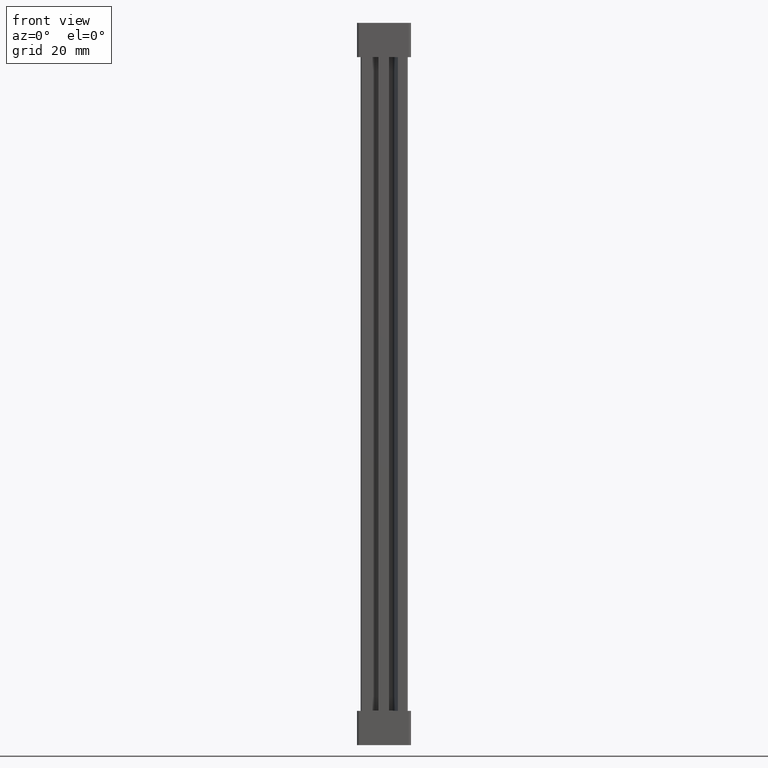
[diagram: clean part render]
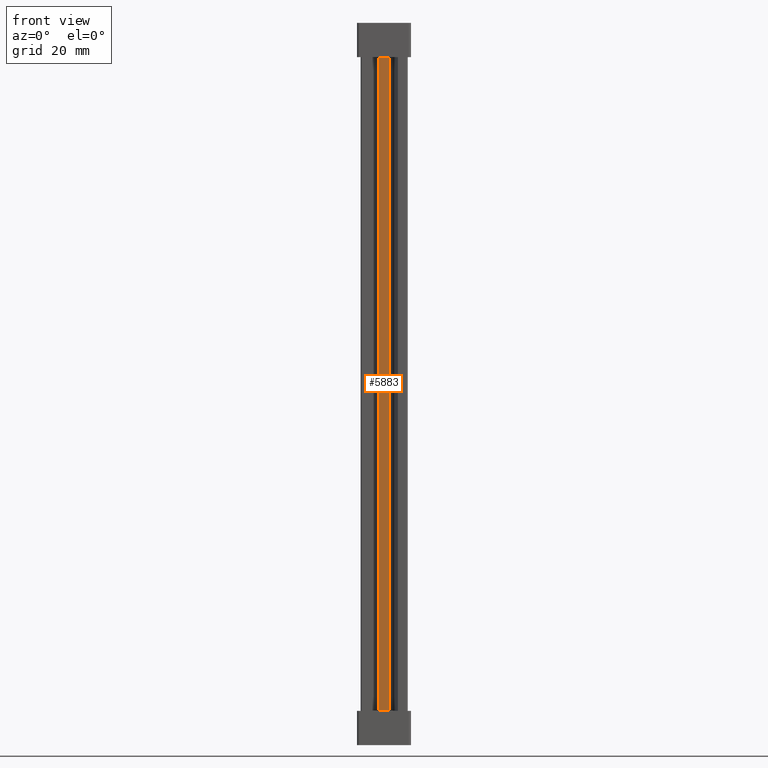
[diagram: same view with one face highlighted and labeled with its STEP entity id]
A machine part, front view. The second image highlights one B-rep face of the part: STEP entity #5883.
In plain terms, the highlighted planar face has unit normal (0, 1, 0).
Its self-contained STEP definition (entity closure, byte-faithful):
#1312 = EDGE_CURVE ( 'NONE', #21221, #21295, #5418, .T. ) ;
#1316 = EDGE_CURVE ( 'NONE', #21295, #21284, #5389, .T. ) ;
#1326 = EDGE_CURVE ( 'NONE', #21228, #21221, #5457, .T. ) ;
#1337 = EDGE_CURVE ( 'NONE', #21284, #21228, #5462, .T. ) ;
#2369 = CARTESIAN_POINT ( 'NONE',  ( 7.950000000000123600, -2.775557561562891400E-013, 208.6000000000546200 ) ) ;
#2410 = CARTESIAN_POINT ( 'NONE',  ( 4.849999999999909900, -2.775557561562891400E-013, 208.6000000000561800 ) ) ;
#2468 = CARTESIAN_POINT ( 'NONE',  ( 4.849999999999909900, -2.775557561562891400E-013, 10.39999999994381200 ) ) ;
#2498 = CARTESIAN_POINT ( 'NONE',  ( 7.950000000000123600, -2.775557561562891400E-013, 10.39999999994536000 ) ) ;
#4593 = AXIS2_PLACEMENT_3D ( 'NONE', #18212, #18198, #18238 ) ;
#5389 = LINE ( 'NONE', #5423, #19065 ) ;
#5397 = CARTESIAN_POINT ( 'NONE',  ( 7.950000000000123600, -2.775557561562891400E-013, 219.0000000000000000 ) ) ;
#5406 = DIRECTION ( 'NONE',  ( -1.000000000000000000, 0.0000000000000000000, -4.965472477636011600E-013 ) ) ;
#5408 = DIRECTION ( 'NONE',  ( -0.0000000000000000000, 0.0000000000000000000, -1.000000000000000000 ) ) ;
#5418 = LINE ( 'NONE', #5397, #19085 ) ;
#5423 = CARTESIAN_POINT ( 'NONE',  ( 6.466000000103465900, -2.775557561562891400E-013, 10.39999999994461400 ) ) ;
#5432 = DIRECTION ( 'NONE',  ( 0.0000000000000000000, -0.0000000000000000000, 1.000000000000000000 ) ) ;
#5436 = CARTESIAN_POINT ( 'NONE',  ( 4.849999999999909900, -2.775557561562891400E-013, 219.0000000000000000 ) ) ;
#5440 = CARTESIAN_POINT ( 'NONE',  ( 6.466000000103465900, -2.775557561562891400E-013, 208.6000000000553900 ) ) ;
#5457 = LINE ( 'NONE', #5440, #19136 ) ;
#5462 = LINE ( 'NONE', #5436, #19068 ) ;
#5466 = DIRECTION ( 'NONE',  ( 1.000000000000000000, 0.0000000000000000000, -4.965472477636011600E-013 ) ) ;
#5883 = ADVANCED_FACE ( 'NONE', ( #18266 ), #18227, .F. ) ;
#18110 = EDGE_LOOP ( 'NONE', ( #22610, #22613, #22612, #22604 ) ) ;
#18198 = DIRECTION ( 'NONE',  ( 0.0000000000000000000, 1.000000000000000000, 0.0000000000000000000 ) ) ;
#18212 = CARTESIAN_POINT ( 'NONE',  ( 6.525548534933081500, -2.775557561562891400E-013, 219.0000000000000000 ) ) ;
#18227 = PLANE ( 'NONE',  #4593 ) ;
#18238 = DIRECTION ( 'NONE',  ( 0.0000000000000000000, -0.0000000000000000000, 1.000000000000000000 ) ) ;
#18266 = FACE_OUTER_BOUND ( 'NONE', #18110, .T. ) ;
#19065 = VECTOR ( 'NONE', #5406, 1000.000000000000000 ) ;
#19068 = VECTOR ( 'NONE', #5432, 1000.000000000000000 ) ;
#19085 = VECTOR ( 'NONE', #5408, 1000.000000000000000 ) ;
#19136 = VECTOR ( 'NONE', #5466, 1000.000000000000000 ) ;
#21221 = VERTEX_POINT ( 'NONE', #2369 ) ;
#21228 = VERTEX_POINT ( 'NONE', #2410 ) ;
#21284 = VERTEX_POINT ( 'NONE', #2468 ) ;
#21295 = VERTEX_POINT ( 'NONE', #2498 ) ;
#22604 = ORIENTED_EDGE ( 'NONE', *, *, #1312, .F. ) ;
#22610 = ORIENTED_EDGE ( 'NONE', *, *, #1326, .F. ) ;
#22612 = ORIENTED_EDGE ( 'NONE', *, *, #1316, .F. ) ;
#22613 = ORIENTED_EDGE ( 'NONE', *, *, #1337, .F. ) ;